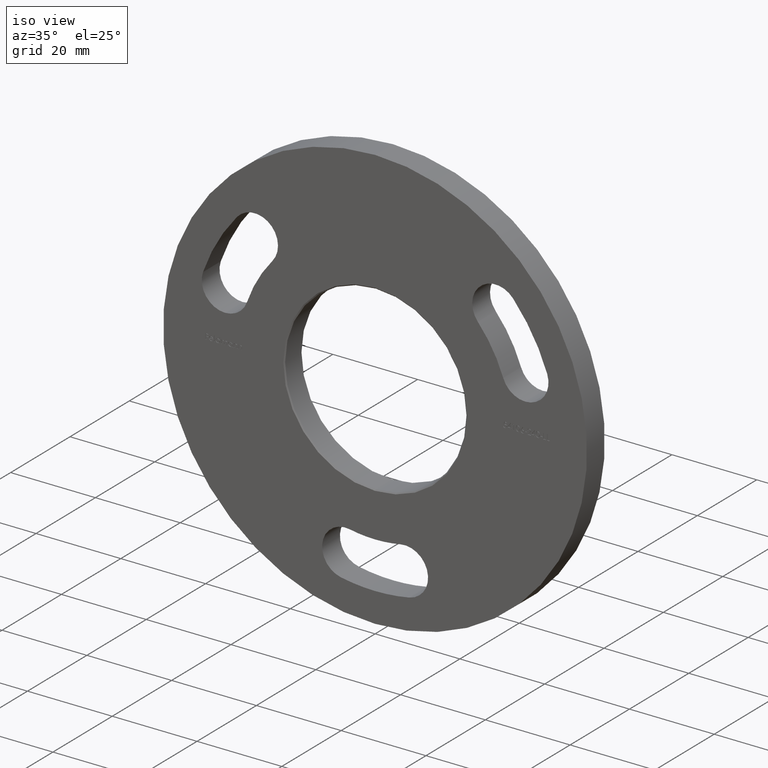
[diagram: clean part render]
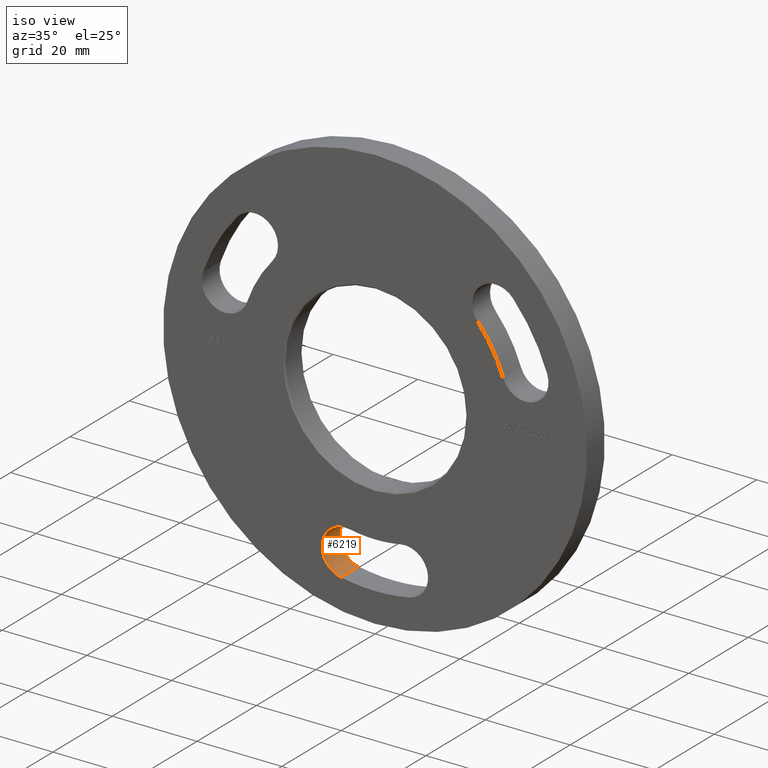
[diagram: same view with one face highlighted and labeled with its STEP entity id]
A machine part, iso view. The second image highlights one B-rep face of the part: STEP entity #6219.
In plain terms, the highlighted cylindrical surface (edge-blend (fillet) strip) has radius 5.5 mm, axis along (-0, -1, -0).
Its self-contained STEP definition (entity closure, byte-faithful):
#264 = CARTESIAN_POINT ( 'NONE',  ( -7.000000000000001776, 6.000000000000000000, -36.84087403957728668 ) ) ;
#458 = FACE_OUTER_BOUND ( 'NONE', #12330, .T. ) ;
#486 = ORIENTED_EDGE ( 'NONE', *, *, #8592, .F. ) ;
#1143 = CARTESIAN_POINT ( 'NONE',  ( -7.000000000000001776, 0.000000000000000000, -36.84087403957728668 ) ) ;
#1209 = CARTESIAN_POINT ( 'NONE',  ( -5.973333333333338935, 6.000000000000000000, -31.43754584710595168 ) ) ;
#1613 = AXIS2_PLACEMENT_3D ( 'NONE', #6245, #7370, #7285 ) ;
#1678 = ORIENTED_EDGE ( 'NONE', *, *, #7151, .T. ) ;
#2111 = EDGE_CURVE ( 'NONE', #11567, #7777, #7983, .T. ) ;
#2809 = CIRCLE ( 'NONE', #6490, 5.499999999999998224 ) ;
#3489 = CARTESIAN_POINT ( 'NONE',  ( -8.026666666666663730, 6.000000000000000000, -42.24420223204860747 ) ) ;
#3558 = VERTEX_POINT ( 'NONE', #3489 ) ;
#3743 = VERTEX_POINT ( 'NONE', #10512 ) ;
#3794 = ORIENTED_EDGE ( 'NONE', *, *, #2111, .T. ) ;
#4186 = DIRECTION ( 'NONE',  ( 0.000000000000000000, 1.000000000000000000, 0.000000000000000000 ) ) ;
#4736 = VECTOR ( 'NONE', #7797, 1000.000000000000000 ) ;
#5265 = CARTESIAN_POINT ( 'NONE',  ( -5.973333333333338935, 0.000000000000000000, -31.43754584710595168 ) ) ;
#5731 = CYLINDRICAL_SURFACE ( 'NONE', #1613, 5.499999999999998224 ) ;
#6219 = ADVANCED_FACE ( 'NONE', ( #458 ), #5731, .F. ) ;
#6245 = CARTESIAN_POINT ( 'NONE',  ( -7.000000000000001776, 6.000000000000000000, -36.84087403957728668 ) ) ;
#6490 = AXIS2_PLACEMENT_3D ( 'NONE', #1143, #4186, #7235 ) ;
#7151 = EDGE_CURVE ( 'NONE', #3558, #11567, #12465, .T. ) ;
#7235 = DIRECTION ( 'NONE',  ( 0.000000000000000000, 0.000000000000000000, 1.000000000000000000 ) ) ;
#7285 = DIRECTION ( 'NONE',  ( 0.000000000000000000, 0.000000000000000000, -1.000000000000000000 ) ) ;
#7370 = DIRECTION ( 'NONE',  ( -0.000000000000000000, -1.000000000000000000, -0.000000000000000000 ) ) ;
#7405 = EDGE_CURVE ( 'NONE', #3558, #3743, #7473, .T. ) ;
#7473 = LINE ( 'NONE', #8787, #4736 ) ;
#7777 = VERTEX_POINT ( 'NONE', #5265 ) ;
#7797 = DIRECTION ( 'NONE',  ( -0.000000000000000000, -1.000000000000000000, -0.000000000000000000 ) ) ;
#7983 = LINE ( 'NONE', #1209, #8948 ) ;
#8592 = EDGE_CURVE ( 'NONE', #3743, #7777, #2809, .T. ) ;
#8787 = CARTESIAN_POINT ( 'NONE',  ( -8.026666666666663730, 6.000000000000000000, -42.24420223204860747 ) ) ;
#8948 = VECTOR ( 'NONE', #10295, 1000.000000000000000 ) ;
#10295 = DIRECTION ( 'NONE',  ( -0.000000000000000000, -1.000000000000000000, -0.000000000000000000 ) ) ;
#10409 = DIRECTION ( 'NONE',  ( 0.000000000000000000, 1.000000000000000000, 0.000000000000000000 ) ) ;
#10512 = CARTESIAN_POINT ( 'NONE',  ( -8.026666666666663730, 0.000000000000000000, -42.24420223204860747 ) ) ;
#11049 = AXIS2_PLACEMENT_3D ( 'NONE', #264, #10409, #12536 ) ;
#11567 = VERTEX_POINT ( 'NONE', #12541 ) ;
#11794 = ORIENTED_EDGE ( 'NONE', *, *, #7405, .F. ) ;
#12330 = EDGE_LOOP ( 'NONE', ( #486, #11794, #1678, #3794 ) ) ;
#12465 = CIRCLE ( 'NONE', #11049, 5.499999999999998224 ) ;
#12536 = DIRECTION ( 'NONE',  ( 0.000000000000000000, 0.000000000000000000, 1.000000000000000000 ) ) ;
#12541 = CARTESIAN_POINT ( 'NONE',  ( -5.973333333333338935, 6.000000000000000000, -31.43754584710595168 ) ) ;